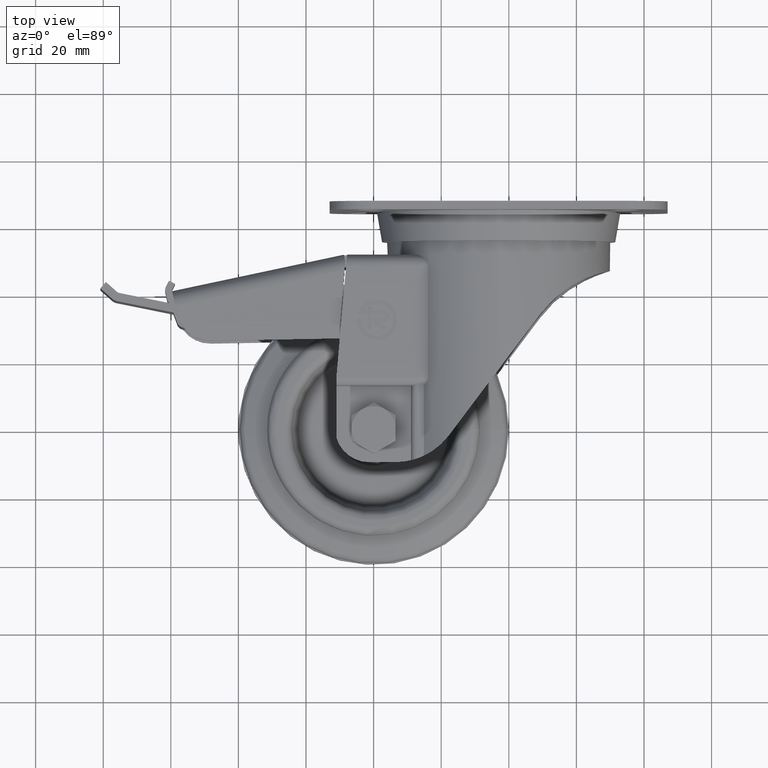
[diagram: clean part render]
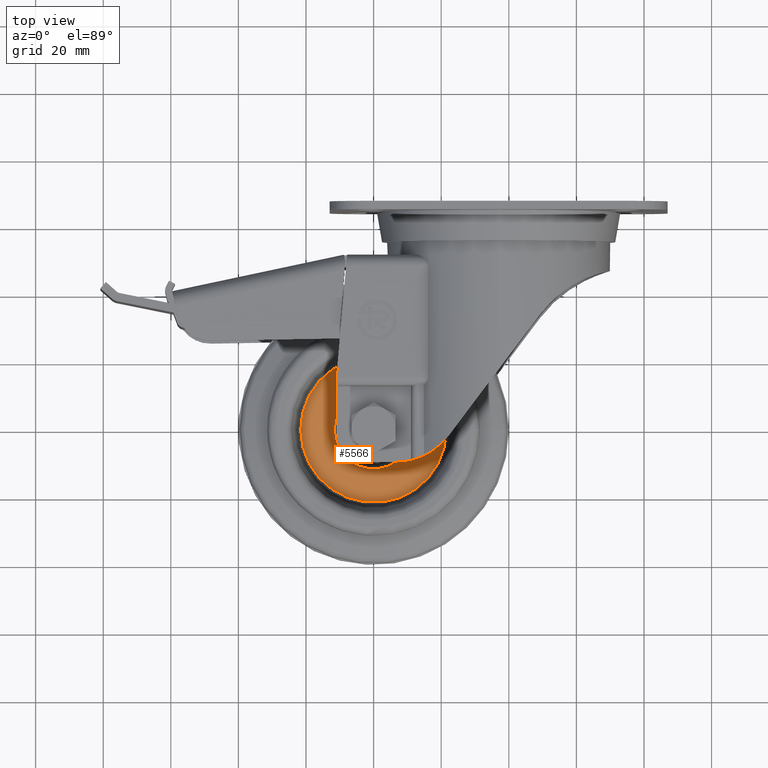
[diagram: same view with one face highlighted and labeled with its STEP entity id]
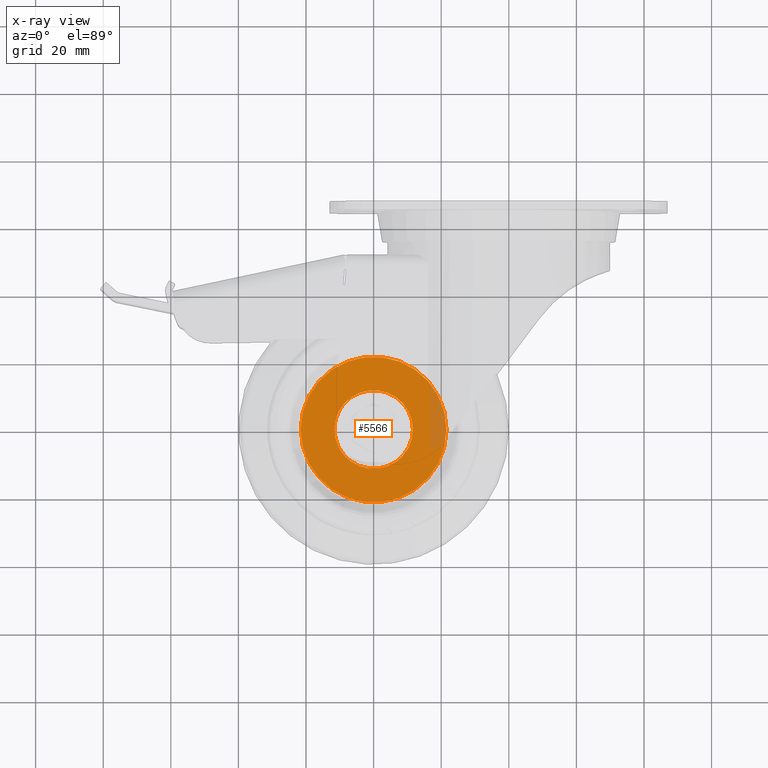
[diagram: x-ray of the same camera — body ghosted, the highlighted face saturated]
A machine part, top view. The second image highlights one B-rep face of the part: STEP entity #5566.
The next image is the same camera in x-ray: the body ghosted, the highlighted face saturated — about 7% of this face is hidden behind the body in this view.
In plain terms, the highlighted planar face has unit normal (0, 0, 1).
Its self-contained STEP definition (entity closure, byte-faithful):
#1490=FACE_BOUND('',#1949,.T.);
#1612=FACE_OUTER_BOUND('',#1948,.T.);
#1948=EDGE_LOOP('',(#3968));
#1949=EDGE_LOOP('',(#3969));
#2345=CIRCLE('',#5916,11.6212708891773);
#2346=CIRCLE('',#5918,21.5531810877098);
#2575=VERTEX_POINT('',#8166);
#2576=VERTEX_POINT('',#8169);
#3125=EDGE_CURVE('',#2575,#2575,#2345,.T.);
#3126=EDGE_CURVE('',#2576,#2576,#2346,.T.);
#3968=ORIENTED_EDGE('',*,*,#3126,.F.);
#3969=ORIENTED_EDGE('',*,*,#3125,.T.);
#5354=PLANE('',#5917);
#5566=ADVANCED_FACE('',(#1612,#1490),#5354,.T.);
#5916=AXIS2_PLACEMENT_3D('',#8167,#6573,#6574);
#5917=AXIS2_PLACEMENT_3D('',#8168,#6575,#6576);
#5918=AXIS2_PLACEMENT_3D('',#8170,#6577,#6578);
#6573=DIRECTION('center_axis',(1.,0.,0.));
#6574=DIRECTION('ref_axis',(0.,0.,-1.));
#6575=DIRECTION('center_axis',(-1.,0.,0.));
#6576=DIRECTION('ref_axis',(0.,0.,1.));
#6577=DIRECTION('center_axis',(1.,0.,0.));
#6578=DIRECTION('ref_axis',(0.,0.,-1.));
#8166=CARTESIAN_POINT('',(17.,0.,-11.6212708891773));
#8167=CARTESIAN_POINT('Origin',(17.,0.,0.));
#8168=CARTESIAN_POINT('Origin',(17.,21.5531810877098,0.));
#8169=CARTESIAN_POINT('',(17.,0.,-21.5531810877098));
#8170=CARTESIAN_POINT('Origin',(17.,0.,0.));